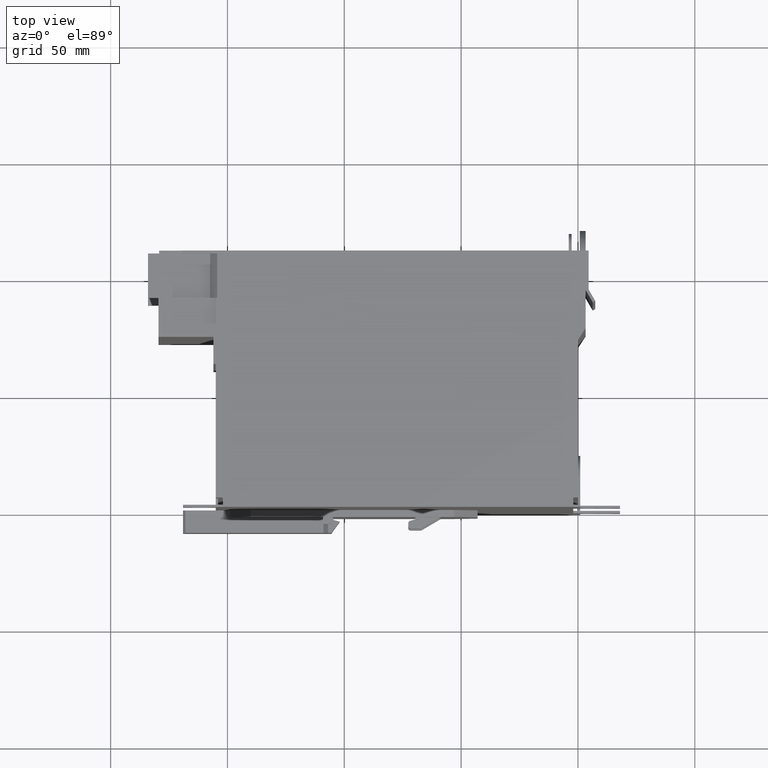
[diagram: clean part render]
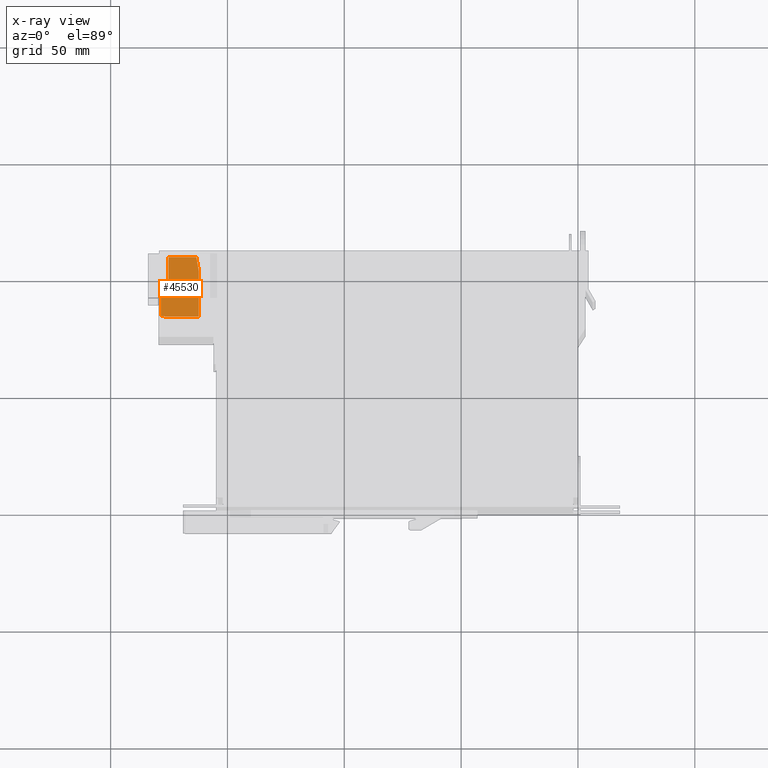
[diagram: x-ray — body ghosted, one internal face saturated and labeled with its STEP entity id]
A machine part, top view, then the same camera in x-ray: the body is ghosted and one INTERNAL B-rep face — a face not visible from any outside direction — is saturated and labeled: STEP entity #45530.
In plain terms, the highlighted planar face has unit normal (0, 0, 1).
Its self-contained STEP definition (entity closure, byte-faithful):
#43710=CARTESIAN_POINT('',(-71.5,101.75,21.25));
#43720=VERTEX_POINT('',#43710);
#43750=CARTESIAN_POINT('',(-71.5,0.,21.25));
#43760=DIRECTION('',(0.,1.,0.));
#43770=VECTOR('',#43760,1.);
#43780=LINE('',#43750,#43770);
#43790=CARTESIAN_POINT('',(-71.5,104.159741026066,21.25));
#43800=VERTEX_POINT('',#43790);
#43810=EDGE_CURVE('',#43720,#43800,#43780,.T.);
#44270=CARTESIAN_POINT('',(-71.5,101.75,21.2920621860702));
#44280=VERTEX_POINT('',#44270);
#44310=CARTESIAN_POINT('',(-71.5,101.75,0.));
#44320=DIRECTION('',(0.,0.,-1.));
#44330=VECTOR('',#44320,1.);
#44340=LINE('',#44310,#44330);
#44350=EDGE_CURVE('',#44280,#43720,#44340,.T.);
#44500=CARTESIAN_POINT('',(-71.5,97.29999999996,24.5100000001));
#44510=VERTEX_POINT('',#44500);
#44540=CARTESIAN_POINT('',(-71.5,97.29999999996,-143.000504719));
#44550=DIRECTION('',(0.,0.,1.));
#44560=VECTOR('',#44550,1.);
#44570=LINE('',#44540,#44560);
#44580=CARTESIAN_POINT('',(-71.5,97.29999999996,21.3697372250014));
#44590=VERTEX_POINT('',#44580);
#44600=EDGE_CURVE('',#44590,#44510,#44570,.T.);
#44790=CARTESIAN_POINT('',(-71.5,-7.28098071734,-143.000504719));
#44800=DIRECTION('',(1.,-0.,0.));
#44810=DIRECTION('',(0.,0.,-1.));
#44820=AXIS2_PLACEMENT_3D('',#44790,#44800,#44810);
#44830=PLANE('',#44820);
#44840=CARTESIAN_POINT('',(-71.5,-7.28098071734,23.0100000001));
#44850=DIRECTION('',(0.,-1.,0.));
#44860=VECTOR('',#44850,1.);
#44870=LINE('',#44840,#44860);
#44880=CARTESIAN_POINT('',(-71.5,83.5,23.0100000001));
#44890=VERTEX_POINT('',#44880);
#44900=CARTESIAN_POINT('',(-71.5,83.3,23.0100000001));
#44910=VERTEX_POINT('',#44900);
#44920=EDGE_CURVE('',#44890,#44910,#44870,.T.);
#44930=ORIENTED_EDGE('',*,*,#44920,.F.);
#44940=CARTESIAN_POINT('',(-71.5,83.3,0.));
#44950=DIRECTION('',(0.,0.,1.));
#44960=VECTOR('',#44950,1.);
#44970=LINE('',#44940,#44960);
#44980=CARTESIAN_POINT('',(-71.5,83.3,8.25));
#44990=VERTEX_POINT('',#44980);
#45000=EDGE_CURVE('',#44990,#44910,#44970,.T.);
#45010=ORIENTED_EDGE('',*,*,#45000,.T.);
#45020=CARTESIAN_POINT('',(-71.5,0.,8.25));
#45030=DIRECTION('',(0.,-1.,0.));
#45040=VECTOR('',#45030,1.);
#45050=LINE('',#45020,#45040);
#45060=CARTESIAN_POINT('',(-71.5,102.697440819413,8.25));
#45070=VERTEX_POINT('',#45060);
#45080=EDGE_CURVE('',#45070,#44990,#45050,.T.);
#45090=ORIENTED_EDGE('',*,*,#45080,.T.);
#45100=CARTESIAN_POINT('',(-71.5,-7.28098071734,-11.142163012644));
#45110=DIRECTION('',(0.,-0.98480775301223,-0.173648177666805));
#45120=VECTOR('',#45110,1.);
#45130=LINE('',#45100,#45120);
#45140=CARTESIAN_POINT('',(-71.5,108.699999999959,9.30841313682885));
#45150=VERTEX_POINT('',#45140);
#45160=EDGE_CURVE('',#45150,#45070,#45130,.T.);
#45170=ORIENTED_EDGE('',*,*,#45160,.T.);
#45180=CARTESIAN_POINT('',(-71.5,108.69999999994,-143.000504719));
#45190=DIRECTION('',(0.,-1.240994012682E-13,-1.));
#45200=VECTOR('',#45190,1.);
#45210=LINE('',#45180,#45200);
#45220=CARTESIAN_POINT('',(-71.5,108.699999999961,21.1707494848197));
#45230=VERTEX_POINT('',#45220);
#45240=EDGE_CURVE('',#45230,#45150,#45210,.T.);
#45250=ORIENTED_EDGE('',*,*,#45240,.T.);
#45260=CARTESIAN_POINT('',(-71.5,-7.28098071734,23.1952050336782));
#45270=DIRECTION('',(0.,0.999847695156391,-0.0174524064372798));
#45280=VECTOR('',#45270,1.);
#45290=LINE('',#45260,#45280);
#45300=EDGE_CURVE('',#43800,#45230,#45290,.T.);
#45310=ORIENTED_EDGE('',*,*,#45300,.T.);
#45320=ORIENTED_EDGE('',*,*,#43810,.T.);
#45330=ORIENTED_EDGE('',*,*,#44350,.T.);
#45340=EDGE_CURVE('',#44590,#44280,#45290,.T.);
#45350=ORIENTED_EDGE('',*,*,#45340,.T.);
#45360=ORIENTED_EDGE('',*,*,#44600,.F.);
#45370=CARTESIAN_POINT('',(-71.5,-7.28098071734,24.5100000001));
#45380=DIRECTION('',(0.,-1.,0.));
#45390=VECTOR('',#45380,1.);
#45400=LINE('',#45370,#45390);
#45410=CARTESIAN_POINT('',(-71.5,83.5,24.5100000001));
#45420=VERTEX_POINT('',#45410);
#45430=EDGE_CURVE('',#44510,#45420,#45400,.T.);
#45440=ORIENTED_EDGE('',*,*,#45430,.F.);
#45450=CARTESIAN_POINT('',(-71.5,83.5,-143.000504719));
#45460=DIRECTION('',(0.,0.,-1.));
#45470=VECTOR('',#45460,1.);
#45480=LINE('',#45450,#45470);
#45490=EDGE_CURVE('',#45420,#44890,#45480,.T.);
#45500=ORIENTED_EDGE('',*,*,#45490,.F.);
#45510=EDGE_LOOP('',(#45500,#45440,#45360,#45350,#45330,#45320,#45310,
#45250,#45170,#45090,#45010,#44930));
#45520=FACE_OUTER_BOUND('',#45510,.T.);
#45530=ADVANCED_FACE('',(#45520),#44830,.F.);